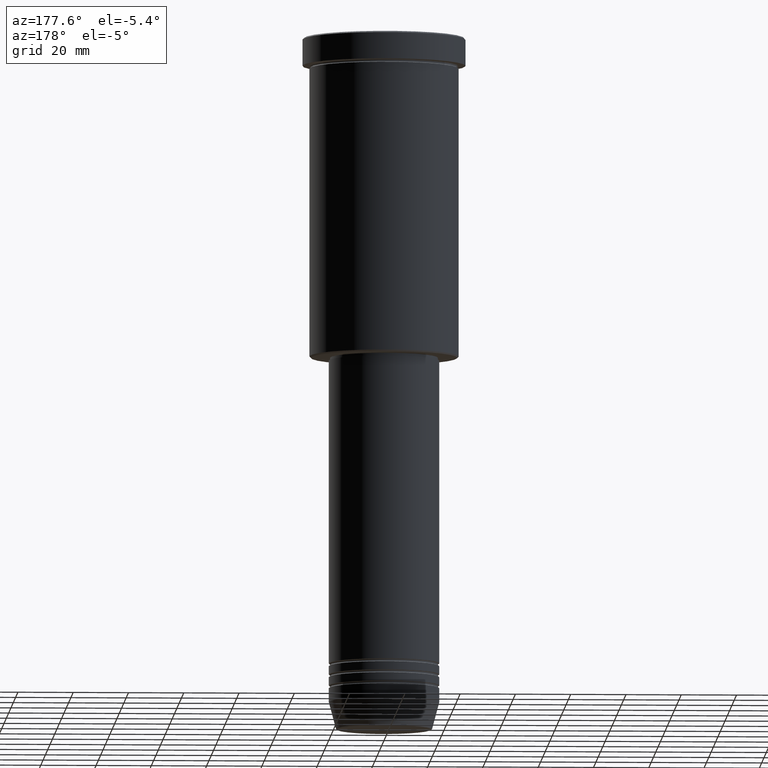
[diagram: clean part render]
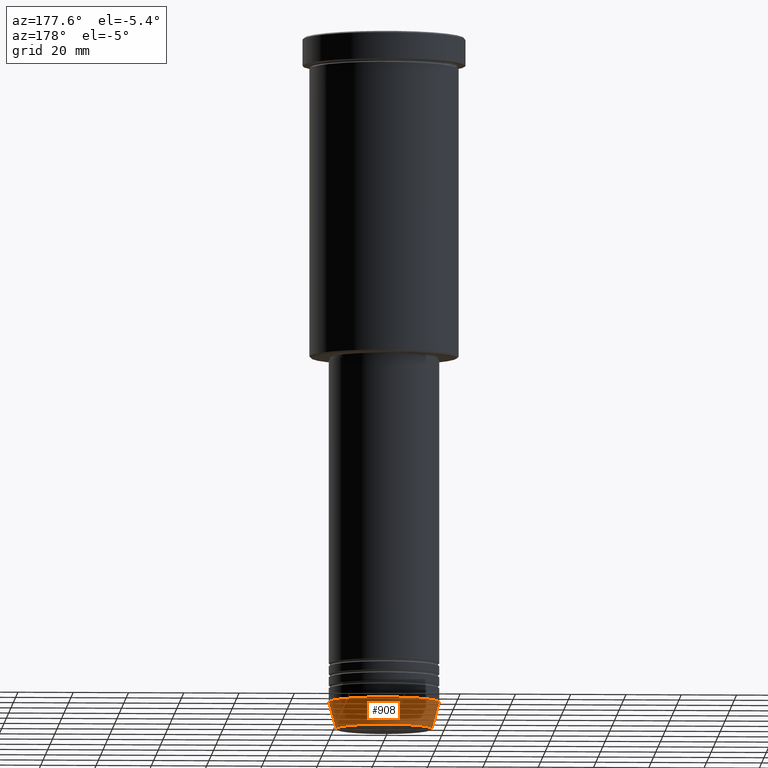
[diagram: same view with one face highlighted and labeled with its STEP entity id]
A machine part, auxiliary view. The second image highlights one B-rep face of the part: STEP entity #908.
In plain terms, the highlighted conical surface has half-angle 15 deg.
Its self-contained STEP definition (entity closure, byte-faithful):
#4 = VECTOR ( 'NONE', #424, 1000.000000000000114 ) ;
#26 = CONICAL_SURFACE ( 'NONE', #864, 20.00000000000000000, 0.2617993877991499074 ) ;
#28 = CARTESIAN_POINT ( 'NONE',  ( -17.41980749484382329, 2.291302373663531915E-15, -250.6294095225512422 ) ) ;
#72 = EDGE_CURVE ( 'NONE', #656, #643, #994, .T. ) ;
#75 = DIRECTION ( 'NONE',  ( -0.000000000000000000, -0.000000000000000000, 1.000000000000000000 ) ) ;
#91 = CARTESIAN_POINT ( 'NONE',  ( 0.000000000000000000, 0.000000000000000000, -250.6294095225512422 ) ) ;
#102 = EDGE_LOOP ( 'NONE', ( #173, #493, #1167, #713 ) ) ;
#173 = ORIENTED_EDGE ( 'NONE', *, *, #72, .T. ) ;
#199 = CIRCLE ( 'NONE', #879, 20.00000000000000000 ) ;
#283 = CARTESIAN_POINT ( 'NONE',  ( 20.00000000000000000, 0.000000000000000000, -241.0000000000000000 ) ) ;
#346 = FACE_OUTER_BOUND ( 'NONE', #102, .T. ) ;
#360 = CARTESIAN_POINT ( 'NONE',  ( 20.00000000000000000, 0.000000000000000000, -241.0000000000000000 ) ) ;
#372 = DIRECTION ( 'NONE',  ( 0.2588190451025211836, 0.000000000000000000, 0.9659258262890680902 ) ) ;
#383 = EDGE_CURVE ( 'NONE', #643, #854, #965, .T. ) ;
#424 = DIRECTION ( 'NONE',  ( -0.2588190451025211836, 3.169619151431770488E-17, 0.9659258262890680902 ) ) ;
#493 = ORIENTED_EDGE ( 'NONE', *, *, #383, .T. ) ;
#526 = DIRECTION ( 'NONE',  ( 1.000000000000000000, 0.000000000000000000, 0.000000000000000000 ) ) ;
#532 = VERTEX_POINT ( 'NONE', #360 ) ;
#585 = CARTESIAN_POINT ( 'NONE',  ( -20.00000000000000000, 2.449293598294706513E-15, -241.0000000000000000 ) ) ;
#612 = CARTESIAN_POINT ( 'NONE',  ( 0.000000000000000000, 0.000000000000000000, -241.0000000000000000 ) ) ;
#643 = VERTEX_POINT ( 'NONE', #28 ) ;
#656 = VERTEX_POINT ( 'NONE', #1095 ) ;
#657 = CARTESIAN_POINT ( 'NONE',  ( 0.000000000000000000, 0.000000000000000000, -241.0000000000000000 ) ) ;
#668 = EDGE_CURVE ( 'NONE', #656, #532, #833, .T. ) ;
#678 = EDGE_CURVE ( 'NONE', #532, #854, #199, .T. ) ;
#713 = ORIENTED_EDGE ( 'NONE', *, *, #668, .F. ) ;
#740 = DIRECTION ( 'NONE',  ( 1.000000000000000000, 0.000000000000000000, 0.000000000000000000 ) ) ;
#800 = AXIS2_PLACEMENT_3D ( 'NONE', #91, #905, #526 ) ;
#822 = VECTOR ( 'NONE', #372, 1000.000000000000114 ) ;
#825 = DIRECTION ( 'NONE',  ( -0.000000000000000000, -0.000000000000000000, 1.000000000000000000 ) ) ;
#833 = LINE ( 'NONE', #283, #822 ) ;
#854 = VERTEX_POINT ( 'NONE', #585 ) ;
#864 = AXIS2_PLACEMENT_3D ( 'NONE', #612, #75, #1076 ) ;
#878 = CARTESIAN_POINT ( 'NONE',  ( -20.00000000000000000, 2.449293598294706513E-15, -241.0000000000000000 ) ) ;
#879 = AXIS2_PLACEMENT_3D ( 'NONE', #657, #825, #740 ) ;
#905 = DIRECTION ( 'NONE',  ( -0.000000000000000000, -0.000000000000000000, 1.000000000000000000 ) ) ;
#908 = ADVANCED_FACE ( 'NONE', ( #346 ), #26, .T. ) ;
#965 = LINE ( 'NONE', #878, #4 ) ;
#994 = CIRCLE ( 'NONE', #800, 17.41980749484382329 ) ;
#1076 = DIRECTION ( 'NONE',  ( 1.000000000000000000, 0.000000000000000000, 0.000000000000000000 ) ) ;
#1095 = CARTESIAN_POINT ( 'NONE',  ( 17.41980749484382329, 0.000000000000000000, -250.6294095225512422 ) ) ;
#1167 = ORIENTED_EDGE ( 'NONE', *, *, #678, .F. ) ;